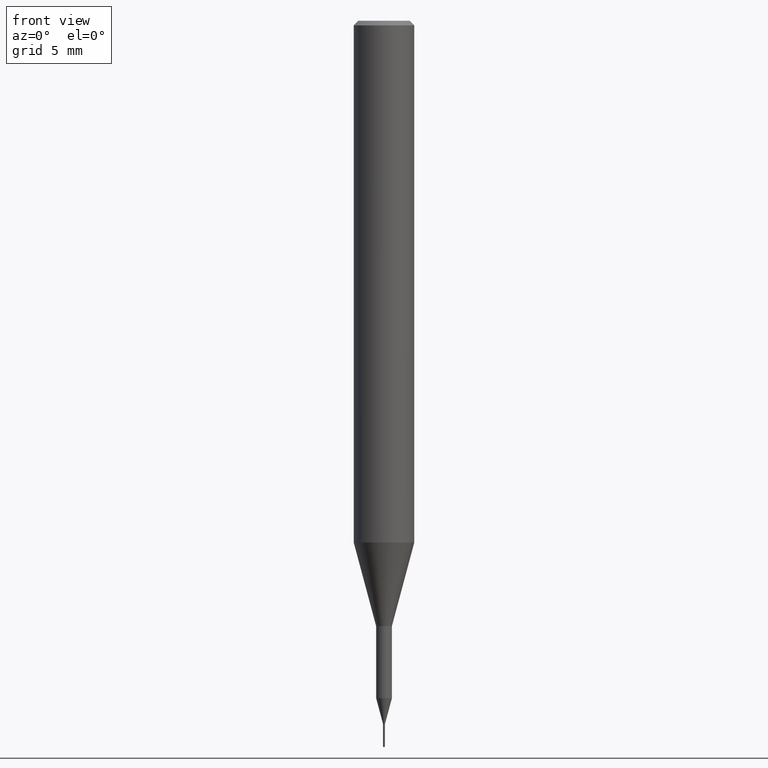
[diagram: clean part render]
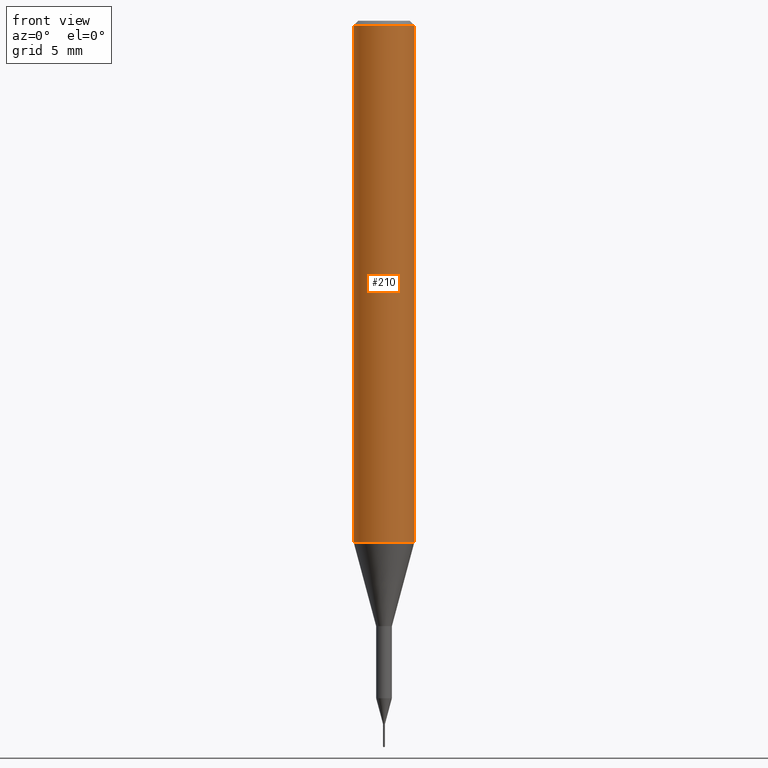
[diagram: same view with one face highlighted and labeled with its STEP entity id]
A machine part, front view. The second image highlights one B-rep face of the part: STEP entity #210.
In plain terms, the highlighted cylindrical surface (edge-blend (fillet) strip) has radius 1.5875 mm, axis along (-0, 0, 1).
Its self-contained STEP definition (entity closure, byte-faithful):
#46 = AXIS2_PLACEMENT_3D ( 'NONE', #285, #328, #559 ) ;
#85 = ORIENTED_EDGE ( 'NONE', *, *, #365, .T. ) ;
#92 = DIRECTION ( 'NONE',  ( -2.445468806185136877E-29, 3.491481338843145188E-15, 1.000000000000000000 ) ) ;
#102 = CARTESIAN_POINT ( 'NONE',  ( -0.06250000000000006939, 4.440892098500631092E-16, -3.074334431409319267E-30 ) ) ;
#112 = DIRECTION ( 'NONE',  ( -2.445468806185136597E-29, 3.491481338843145583E-15, 1.000000000000000000 ) ) ;
#113 = CARTESIAN_POINT ( 'NONE',  ( -0.06250000000000012490, -3.317607122755211895E-15, -1.077392650149939346 ) ) ;
#144 = ORIENTED_EDGE ( 'NONE', *, *, #148, .F. ) ;
#146 = CYLINDRICAL_SURFACE ( 'NONE', #303, 0.06250000000000006939 ) ;
#148 = EDGE_CURVE ( 'NONE', #392, #418, #290, .T. ) ;
#159 = CARTESIAN_POINT ( 'NONE',  ( 0.06250000000000000000, -4.691678049070463404E-16, -0.009375000000000060368 ) ) ;
#168 = DIRECTION ( 'NONE',  ( -2.445468806185136877E-29, 3.491481338843145188E-15, 1.000000000000000000 ) ) ;
#172 = CIRCLE ( 'NONE', #46, 0.06250000000000012490 ) ;
#191 = CARTESIAN_POINT ( 'NONE',  ( 2.292627005798580623E-31, -3.273263755165470184E-17, -0.009375000000000060368 ) ) ;
#205 = ORIENTED_EDGE ( 'NONE', *, *, #527, .F. ) ;
#206 = CARTESIAN_POINT ( 'NONE',  ( 0.000000000000000000, 0.000000000000000000, 0.000000000000000000 ) ) ;
#210 = ADVANCED_FACE ( 'NONE', ( #476 ), #146, .T. ) ;
#224 = VECTOR ( 'NONE', #92, 39.37007874015748143 ) ;
#239 = DIRECTION ( 'NONE',  ( 1.000000000000000000, -6.982962677686266711E-15, 4.876176775795935793E-29 ) ) ;
#254 = EDGE_LOOP ( 'NONE', ( #205, #85, #578, #144 ) ) ;
#266 = EDGE_CURVE ( 'NONE', #345, #418, #354, .T. ) ;
#280 = AXIS2_PLACEMENT_3D ( 'NONE', #191, #387, #289 ) ;
#285 = CARTESIAN_POINT ( 'NONE',  ( 2.634730117954813298E-29, -3.761696332605275695E-15, -1.077392650149939346 ) ) ;
#286 = CARTESIAN_POINT ( 'NONE',  ( 0.06250000000000012490, -4.198131499960668153E-15, -1.077392650149939346 ) ) ;
#289 = DIRECTION ( 'NONE',  ( 1.000000000000000000, -6.982962677686266711E-15, 0.000000000000000000 ) ) ;
#290 = CIRCLE ( 'NONE', #280, 0.06250000000000000000 ) ;
#303 = AXIS2_PLACEMENT_3D ( 'NONE', #206, #112, #239 ) ;
#328 = DIRECTION ( 'NONE',  ( -2.445468806185136597E-29, 3.491481338843145583E-15, 1.000000000000000000 ) ) ;
#336 = CARTESIAN_POINT ( 'NONE',  ( -0.06250000000000000000, -1.453125275228401137E-15, -0.009375000000000060368 ) ) ;
#345 = VERTEX_POINT ( 'NONE', #286 ) ;
#347 = VECTOR ( 'NONE', #168, 39.37007874015748143 ) ;
#354 = LINE ( 'NONE', #579, #347 ) ;
#365 = EDGE_CURVE ( 'NONE', #422, #345, #172, .T. ) ;
#387 = DIRECTION ( 'NONE',  ( -2.445468806185136597E-29, 3.491481338843145583E-15, 1.000000000000000000 ) ) ;
#392 = VERTEX_POINT ( 'NONE', #336 ) ;
#418 = VERTEX_POINT ( 'NONE', #159 ) ;
#422 = VERTEX_POINT ( 'NONE', #113 ) ;
#476 = FACE_OUTER_BOUND ( 'NONE', #254, .T. ) ;
#527 = EDGE_CURVE ( 'NONE', #422, #392, #552, .T. ) ;
#552 = LINE ( 'NONE', #102, #224 ) ;
#559 = DIRECTION ( 'NONE',  ( 1.000000000000000000, -6.982962677686264344E-15, 0.000000000000000000 ) ) ;
#578 = ORIENTED_EDGE ( 'NONE', *, *, #266, .T. ) ;
#579 = CARTESIAN_POINT ( 'NONE',  ( 0.06250000000000006939, -4.364351673553921624E-16, 3.047610484872463374E-30 ) ) ;